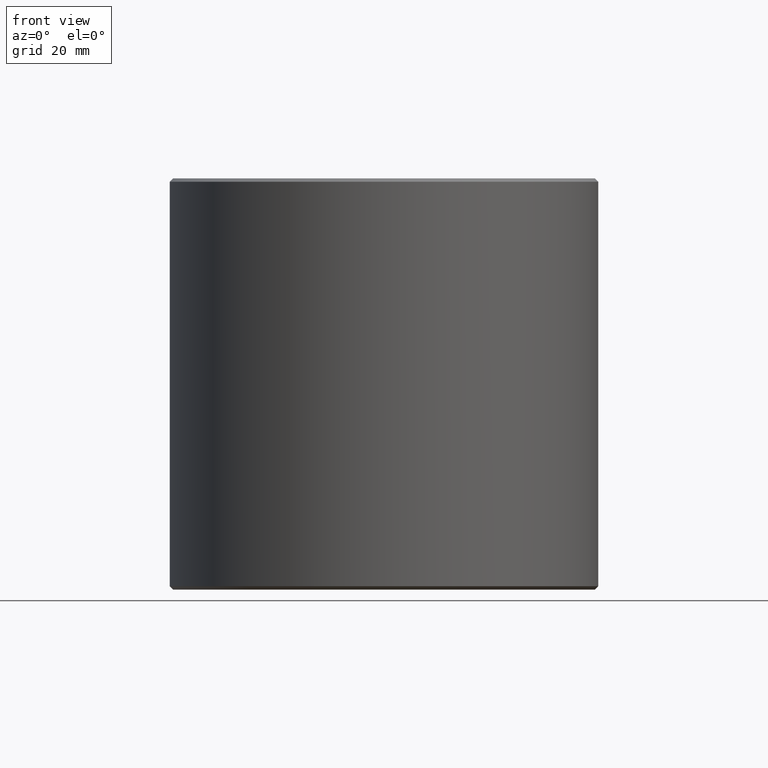
[diagram: clean part render]
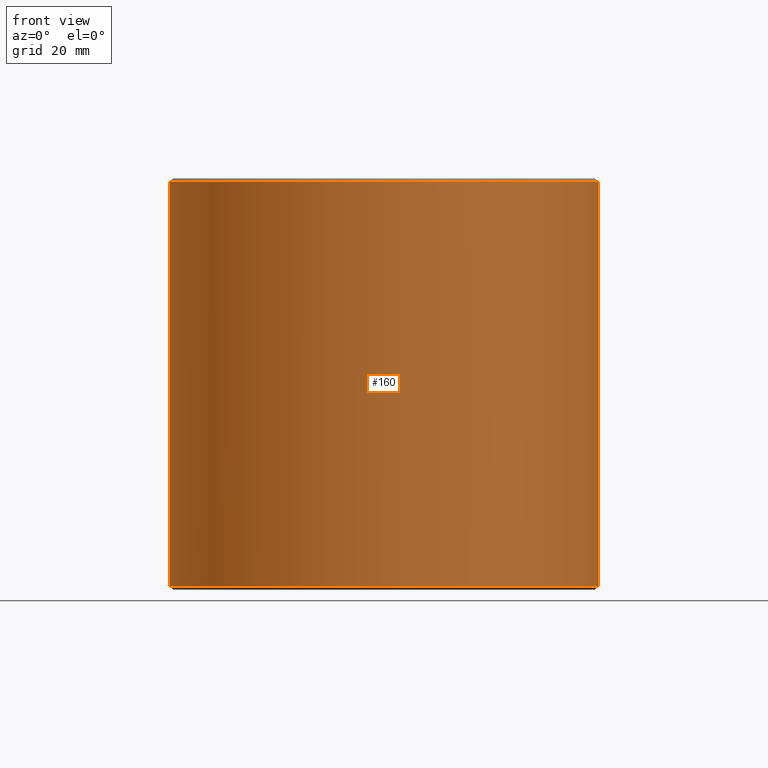
[diagram: same view with one face highlighted and labeled with its STEP entity id]
A machine part, front view. The second image highlights one B-rep face of the part: STEP entity #160.
In plain terms, the highlighted cylindrical surface (bore or boss wall) has radius 62.5 mm, axis along (-0, 0, -1).
Its self-contained STEP definition (entity closure, byte-faithful):
#160=ADVANCED_FACE('',(#186,#187),#188,.T.);
#186=FACE_OUTER_BOUND('',#2766,.T.);
#187=FACE_OUTER_BOUND('',#2767,.T.);
#188=CYLINDRICAL_SURFACE('',#2768,0.0625);
#2766=EDGE_LOOP('',(#5371));
#2767=EDGE_LOOP('',(#5372));
#2768=AXIS2_PLACEMENT_3D('',#5373,#5374,#5375);
#5371=ORIENTED_EDGE('',*,*,#5416,.T.);
#5372=ORIENTED_EDGE('',*,*,#5417,.F.);
#5373=CARTESIAN_POINT('',(0.0,0.0,-1.0842021724855E-019));
#5374=DIRECTION('',(0.0,-6.12323399573677E-017,-1.0));
#5375=DIRECTION('',(0.0,1.0,-6.12323399573677E-017));
#5416=EDGE_CURVE('',#5448,#5448,#5449,.T.);
#5417=EDGE_CURVE('',#5450,#5450,#5451,.T.);
#5448=VERTEX_POINT('',#5720);
#5449=CIRCLE('',#5721,0.0625);
#5450=VERTEX_POINT('',#5722);
#5451=CIRCLE('',#5723,0.0625);
#5720=CARTESIAN_POINT('',(0.0,0.0625,0.119));
#5721=AXIS2_PLACEMENT_3D('',#5756,#5757,#5758);
#5722=CARTESIAN_POINT('',(0.0,0.0625,0.001));
#5723=AXIS2_PLACEMENT_3D('',#5759,#5760,#5761);
#5756=CARTESIAN_POINT('',(0.0,6.93889390390723E-018,0.119));
#5757=DIRECTION('',(0.0,-6.12323399573677E-017,-1.0));
#5758=DIRECTION('',(0.0,1.0,-6.12323399573677E-017));
#5759=CARTESIAN_POINT('',(0.0,0.0,0.001));
#5760=DIRECTION('',(0.0,-6.12323399573677E-017,-1.0));
#5761=DIRECTION('',(0.0,1.0,-6.12323399573677E-017));